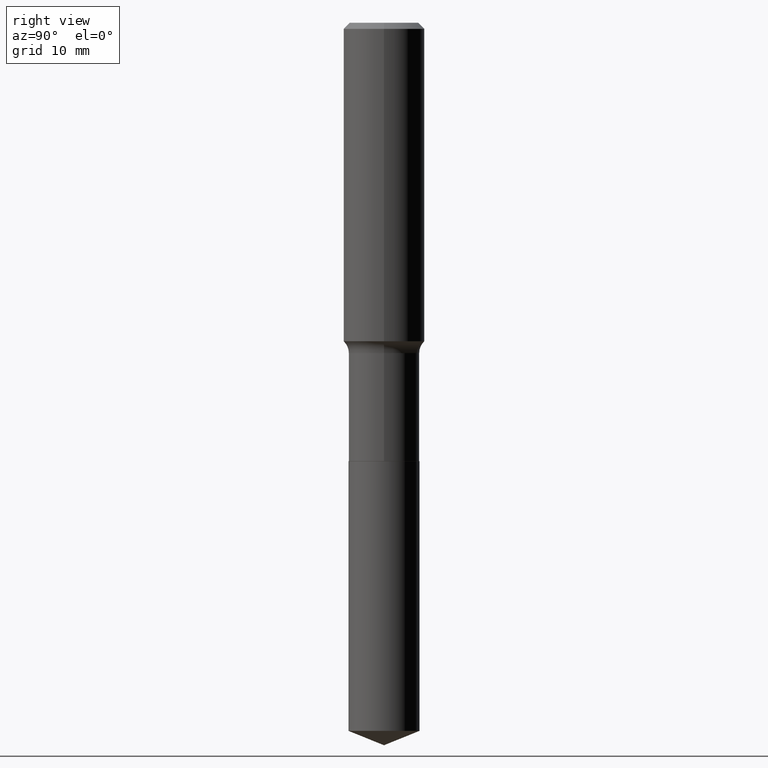
[diagram: clean part render]
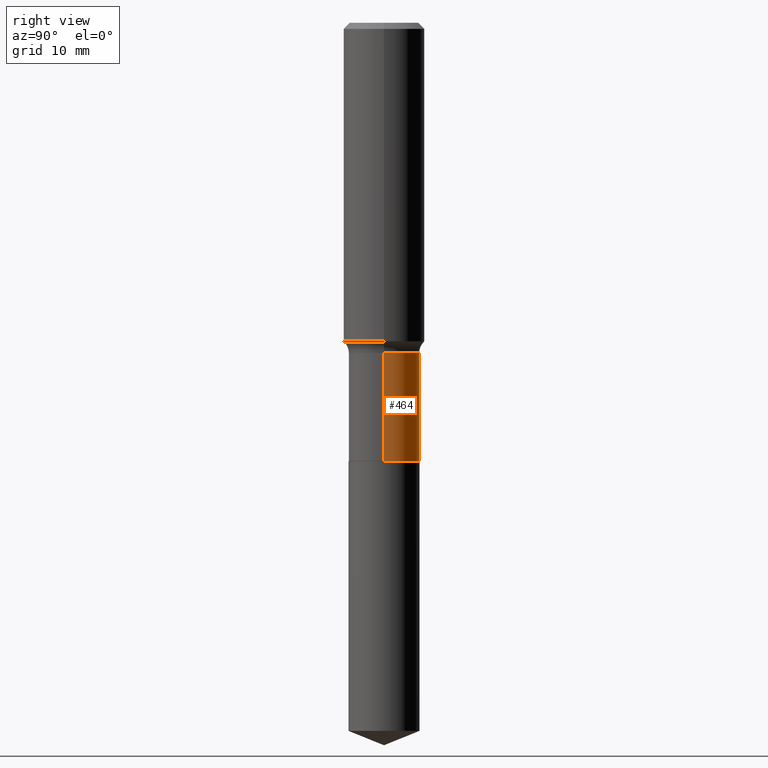
[diagram: same view with one face highlighted and labeled with its STEP entity id]
A machine part, right view. The second image highlights one B-rep face of the part: STEP entity #464.
In plain terms, the highlighted cylindrical surface (edge-blend (fillet) strip) has radius 4.3663 mm, axis along (-0, 0, 1).
Its self-contained STEP definition (entity closure, byte-faithful):
#5 = EDGE_CURVE ( 'NONE', #108, #154, #196, .T. ) ;
#13 = VECTOR ( 'NONE', #168, 39.37007874015748143 ) ;
#24 = CARTESIAN_POINT ( 'NONE',  ( 0.1718999999999999695, -8.621165721871490856E-15, -2.125399999999999956 ) ) ;
#50 = DIRECTION ( 'NONE',  ( -2.445468806185136597E-29, 3.491481338843145583E-15, 1.000000000000000000 ) ) ;
#62 = AXIS2_PLACEMENT_3D ( 'NONE', #280, #287, #242 ) ;
#71 = EDGE_CURVE ( 'NONE', #401, #80, #170, .T. ) ;
#77 = ORIENTED_EDGE ( 'NONE', *, *, #71, .F. ) ;
#80 = VERTEX_POINT ( 'NONE', #159 ) ;
#99 = AXIS2_PLACEMENT_3D ( 'NONE', #241, #50, #205 ) ;
#104 = VECTOR ( 'NONE', #197, 39.37007874015748143 ) ;
#108 = VERTEX_POINT ( 'NONE', #24 ) ;
#137 = ORIENTED_EDGE ( 'NONE', *, *, #5, .T. ) ;
#145 = CARTESIAN_POINT ( 'NONE',  ( 0.000000000000000000, 0.000000000000000000, 0.000000000000000000 ) ) ;
#147 = CARTESIAN_POINT ( 'NONE',  ( -0.1718999999999999695, -5.285476234363415221E-15, -2.125399999999999956 ) ) ;
#154 = VERTEX_POINT ( 'NONE', #147 ) ;
#159 = CARTESIAN_POINT ( 'NONE',  ( -0.1718999999999999140, -5.285476234363416009E-15, -1.601899999999999880 ) ) ;
#168 = DIRECTION ( 'NONE',  ( -2.445468806185136877E-29, 3.491481338843145188E-15, 1.000000000000000000 ) ) ;
#170 = CIRCLE ( 'NONE', #62, 0.1718999999999999140 ) ;
#171 = EDGE_CURVE ( 'NONE', #108, #401, #180, .T. ) ;
#180 = LINE ( 'NONE', #193, #104 ) ;
#193 = CARTESIAN_POINT ( 'NONE',  ( 0.1718999999999999417, -1.200371284294268847E-15, 8.382147877593211677E-30 ) ) ;
#196 = CIRCLE ( 'NONE', #99, 0.1718999999999999695 ) ;
#197 = DIRECTION ( 'NONE',  ( -2.445468806185136877E-29, 3.491481338843145188E-15, 1.000000000000000000 ) ) ;
#204 = AXIS2_PLACEMENT_3D ( 'NONE', #145, #372, #334 ) ;
#205 = DIRECTION ( 'NONE',  ( 1.000000000000000000, -6.982962677686268288E-15, 0.000000000000000000 ) ) ;
#241 = CARTESIAN_POINT ( 'NONE',  ( 5.197599400665889285E-29, -7.420794437577220826E-15, -2.125399999999999956 ) ) ;
#242 = DIRECTION ( 'NONE',  ( 1.000000000000000000, -6.982962677686264344E-15, 0.000000000000000000 ) ) ;
#280 = CARTESIAN_POINT ( 'NONE',  ( 3.917396480627969967E-29, -5.593003956692834804E-15, -1.601899999999999880 ) ) ;
#287 = DIRECTION ( 'NONE',  ( -2.445468806185136597E-29, 3.491481338843145583E-15, 1.000000000000000000 ) ) ;
#292 = CARTESIAN_POINT ( 'NONE',  ( -0.1718999999999999417, 1.221422962771611806E-15, -8.455649420148180377E-30 ) ) ;
#334 = DIRECTION ( 'NONE',  ( 1.000000000000000000, -6.982962677686266711E-15, 4.876176775795936353E-29 ) ) ;
#346 = ORIENTED_EDGE ( 'NONE', *, *, #171, .F. ) ;
#362 = CARTESIAN_POINT ( 'NONE',  ( 0.1718999999999999140, -6.793375240987103256E-15, -1.601899999999999880 ) ) ;
#363 = EDGE_CURVE ( 'NONE', #154, #80, #394, .T. ) ;
#372 = DIRECTION ( 'NONE',  ( -2.445468806185136597E-29, 3.491481338843145583E-15, 1.000000000000000000 ) ) ;
#394 = LINE ( 'NONE', #292, #13 ) ;
#401 = VERTEX_POINT ( 'NONE', #362 ) ;
#406 = FACE_OUTER_BOUND ( 'NONE', #413, .T. ) ;
#413 = EDGE_LOOP ( 'NONE', ( #137, #427, #77, #346 ) ) ;
#427 = ORIENTED_EDGE ( 'NONE', *, *, #363, .T. ) ;
#453 = CYLINDRICAL_SURFACE ( 'NONE', #204, 0.1718999999999999417 ) ;
#464 = ADVANCED_FACE ( 'NONE', ( #406 ), #453, .T. ) ;